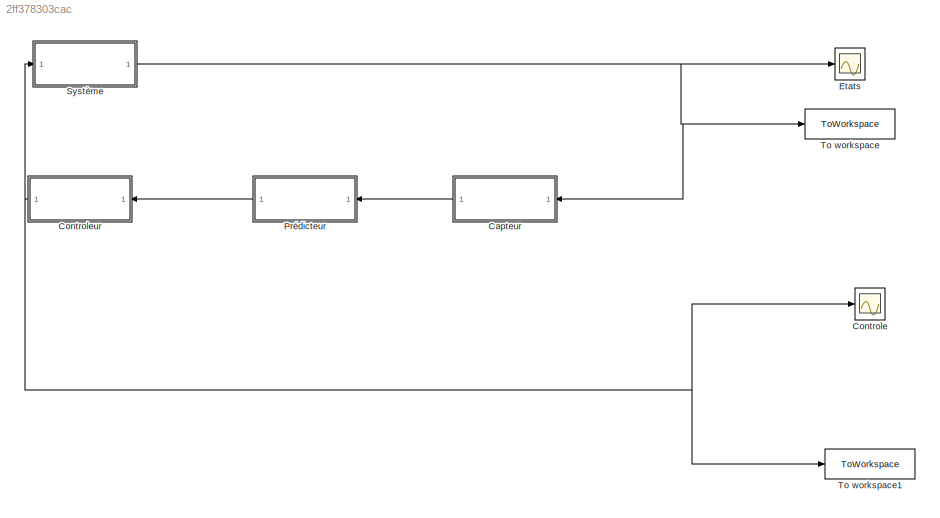
MODEL slx_2ff378303cac
KIND model
CONFIG AbsTol = auto
CONFIG EnableMultiTasking = off
CONFIG FixedStep = auto
CONFIG MaxStep = auto
CONFIG MinStep = auto
CONFIG RelTol = 1e-3
CONFIG SampleTimeConstraint = Unconstrained
CONFIG SolverName = VariableStepAuto
CONFIG StartTime = 0.0
CONFIG StopTime = 10.0
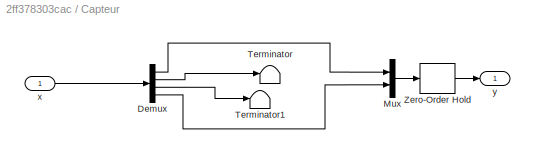
BLOCK [SubSystem] Capteur
  NameLocation = top
  Ports = [1, 1]
  RequestExecContextInheritance = off
BLOCK [Demux] Capteur/Demux
  Ports = [1, 4]
BLOCK [Mux] Capteur/Mux
  DisplayOption = bar
  Inputs = 2
  Ports = [2, 1]
BLOCK [Terminator] Capteur/Terminator
BLOCK [Terminator] Capteur/Terminator1
BLOCK [ZeroOrderHold] Capteur/Zero-Order Hold
  SampleTime = -1
BLOCK [Inport] Capteur/x
BLOCK [Outport] Capteur/y
BLOCK [Scope] Controle
  Floating = off
  NumInputPorts = 1
  Ports = [1]
  ScopeSpecificationString = Simulink.scopes.TimeScopeBlockCfg('CurrentConfiguration', extmgr.ConfigurationSet(extmgr.Configuration('Core','General UI',true),extmgr.Configuration('Core','Source UI',true),extmgr.Configuration('Sources','WiredSimulink',true,'DataLoggingVariableName','ScopeData1'),extmgr.Configuration('Visuals','Time Domain',true),extmgr.Configuration('Tools','Plot Navigation',true),extmgr.Configuration('Tools',...<+65ch>
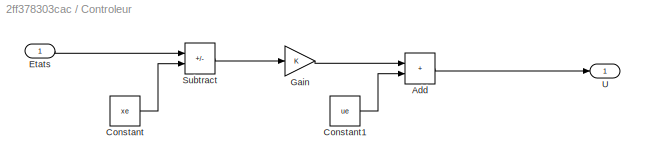
BLOCK [SubSystem] Controleur
  NameLocation = top
  Ports = [1, 1]
  RequestExecContextInheritance = off
BLOCK [Sum] Controleur/Add
  IconShape = rectangular
  Ports = [2, 1]
BLOCK [Constant] Controleur/Constant
  OutDataTypeStr = double
  Value = xe
BLOCK [Constant] Controleur/Constant1
  Value = ue
BLOCK [Inport] Controleur/Etats
BLOCK [Gain] Controleur/Gain
  Gain = K
  Multiplication = Matrix(K*u)
BLOCK [Sum] Controleur/Subtract
  IconShape = rectangular
  Inputs = +-
  Ports = [2, 1]
BLOCK [Outport] Controleur/U
BLOCK [Scope] Etats
  Floating = off
  NumInputPorts = 1
  Ports = [1]
  ScopeSpecificationString = Simulink.scopes.TimeScopeBlockCfg('CurrentConfiguration', extmgr.ConfigurationSet(extmgr.Configuration('Core','General UI',true),extmgr.Configuration('Core','Source UI',true),extmgr.Configuration('Sources','WiredSimulink',true),extmgr.Configuration('Visuals','Time Domain',true),extmgr.Configuration('Tools','Plot Navigation',true),extmgr.Configuration('Tools','Measurements',true)),'Version','2021b'...<+26ch>
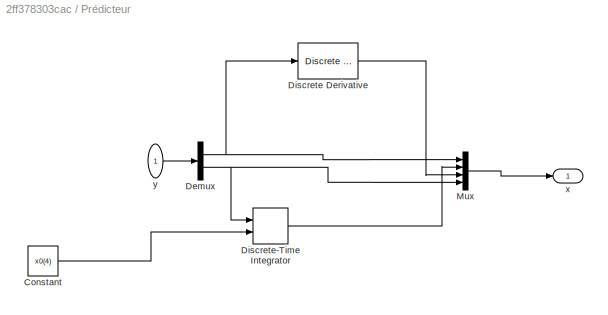
BLOCK [SubSystem] Prédicteur
  NameLocation = top
  Ports = [1, 1]
  RequestExecContextInheritance = off
BLOCK [Constant] Prédicteur/Constant
  OutDataTypeStr = double
  Value = x0(4)
BLOCK [Demux] Prédicteur/Demux
  Outputs = 2
  Ports = [1, 2]
BLOCK [Reference] Prédicteur/Discrete Derivative  REF=simulink/Discrete/Discrete Derivative
  Ports = [1, 1]
  SourceBlock = simulink/Discrete/Discrete Derivative
  SourceProductBaseCode = SL
  SourceType = Discrete Derivative
BLOCK [DiscreteIntegrator] Prédicteur/Discrete-Time Integrator
  ICPrevOutput = DiscIntNeverNeededParam
  ICPrevScaledInput = DiscIntNeverNeededParam
  InitialConditionSetting = Auto
  InitialConditionSource = external
  Ports = [2, 1]
  SampleTime = -1
BLOCK [Mux] Prédicteur/Mux
  DisplayOption = bar
  Ports = [4, 1]
BLOCK [Outport] Prédicteur/x
BLOCK [Inport] Prédicteur/y
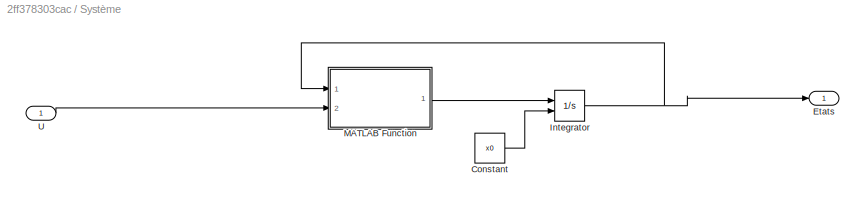
BLOCK [SubSystem] Système
  Ports = [1, 1]
  RequestExecContextInheritance = off
BLOCK [Constant] Système/Constant
  Value = x0
BLOCK [Outport] Système/Etats
BLOCK [Integrator] Système/Integrator
  InitialConditionSource = external
  Ports = [2, 1]
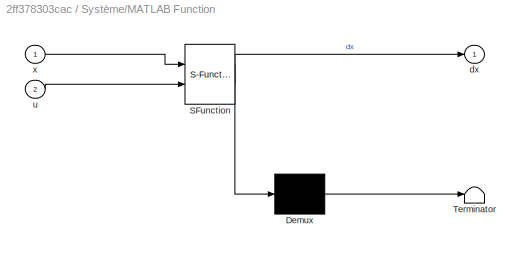
BLOCK [SubSystem] Système/MATLAB Function
  ErrorFcn = Stateflow.Translate.translate
  PermitHierarchicalResolution = ExplicitOnly
  Ports = [2, 1]
  RequestExecContextInheritance = off
  SFBlockType = MATLAB Function
  TreatAsAtomicUnit = on
BLOCK [Demux] Système/MATLAB Function/ Demux 
  Outputs = 1
  Ports = [1, 1]
BLOCK [S-Function] Système/MATLAB Function/ SFunction 
  EnableBusSupport = off
  FunctionName = sf_sfun
  PortCounts = [2 2]
  Ports = [2, 2]
  SFcnIsStateOwnerBlock = off
  SFunctionDeploymentMode = off
  Tag = Stateflow S-Function 2
BLOCK [Terminator] Système/MATLAB Function/ Terminator 
BLOCK [Outport] Système/MATLAB Function/dx
BLOCK [Inport] Système/MATLAB Function/u
  Port = 2
BLOCK [Inport] Système/MATLAB Function/x
BLOCK [Inport] Système/U
BLOCK [ToWorkspace] To workspace
  FixptAsFi = on
  MaxDataPoints = inf
  Ports = [1]
  SampleTime = -1
  SaveFormat = Timeseries
  VariableName = X
BLOCK [ToWorkspace] To workspace1
  FixptAsFi = on
  MaxDataPoints = inf
  Ports = [1]
  SampleTime = -1
  SaveFormat = Timeseries
  VariableName = U
LINE Capteur/Demux:1 -> Capteur/Mux:1
LINE Capteur/Demux:2 -> Capteur/Terminator:1
LINE Capteur/Demux:3 -> Capteur/Terminator1:1
LINE Capteur/Demux:4 -> Capteur/Mux:2
LINE Capteur/Mux:1 -> Capteur/Zero-Order Hold:1
LINE Capteur/Zero-Order Hold:1 -> Capteur/y:1
LINE Capteur/x:1 -> Capteur/Demux:1
LINE Capteur:1 -> Prédicteur:1
LINE Controleur/Add:1 -> Controleur/U:1
LINE Controleur/Constant1:1 -> Controleur/Add:2
LINE Controleur/Constant:1 -> Controleur/Subtract:2
LINE Controleur/Etats:1 -> Controleur/Subtract:1
LINE Controleur/Gain:1 -> Controleur/Add:1
LINE Controleur/Subtract:1 -> Controleur/Gain:1
NET Controleur:1 -> Controle:1, Système:1, To workspace1:1
LINE Prédicteur/Constant:1 -> Prédicteur/Discrete-Time Integrator:2
NET Prédicteur/Demux:1 -> Prédicteur/Discrete Derivative:1, Prédicteur/Mux:1
NET Prédicteur/Demux:2 -> Prédicteur/Discrete-Time Integrator:1, Prédicteur/Mux:4
LINE Prédicteur/Discrete Derivative:1 -> Prédicteur/Mux:3
LINE Prédicteur/Discrete-Time Integrator:1 -> Prédicteur/Mux:2
LINE Prédicteur/Mux:1 -> Prédicteur/x:1
LINE Prédicteur/y:1 -> Prédicteur/Demux:1
LINE Prédicteur:1 -> Controleur:1
LINE Système/Constant:1 -> Système/Integrator:2
NET Système/Integrator:1 -> Système/Etats:1, Système/MATLAB Function:1
LINE Système/MATLAB Function:1 -> Système/Integrator:1
LINE Système/U:1 -> Système/MATLAB Function:2
NET Système:1 -> Capteur:1, Etats:1, To workspace:1
note: NET lines group one-source signal fan-out (src -> all destinations, sorted); 1:1 wires keep LINE
CHART Système/MATLAB Function states=1 transitions=1
  STATE_LABEL 'eML_blk_kernel()'
  STATE_LABEL 'SCRIPT:\nfunction dx   = fonction( x, u)\n%   Dynamic equations of motion of the segway on an axis.\n%   Inputs: - x = [theta psi dtheta dpsi]\n%               theta: average angle of the wheels      [rad]\n%               psi: body pitch angle                   [rad]\n%               dtheta: average velocity of the wheels  [rad/s]\n%               dpsi: body pitch velocity               [rad/s]\n%       ...<+1496ch>'
CHART  states=0 transitions=0
